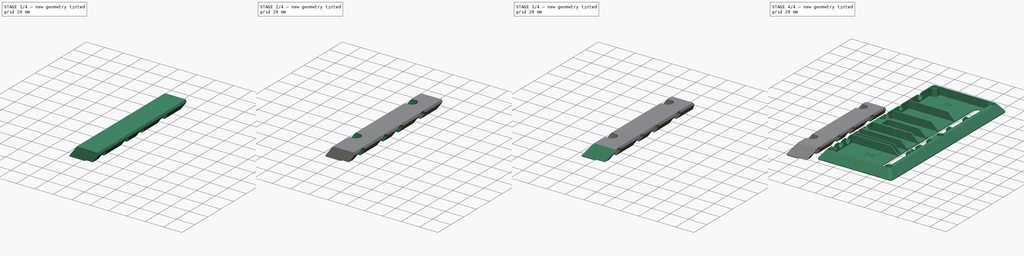
[diagram: build sequence overview — one tinted view per stage of 4, left to right]
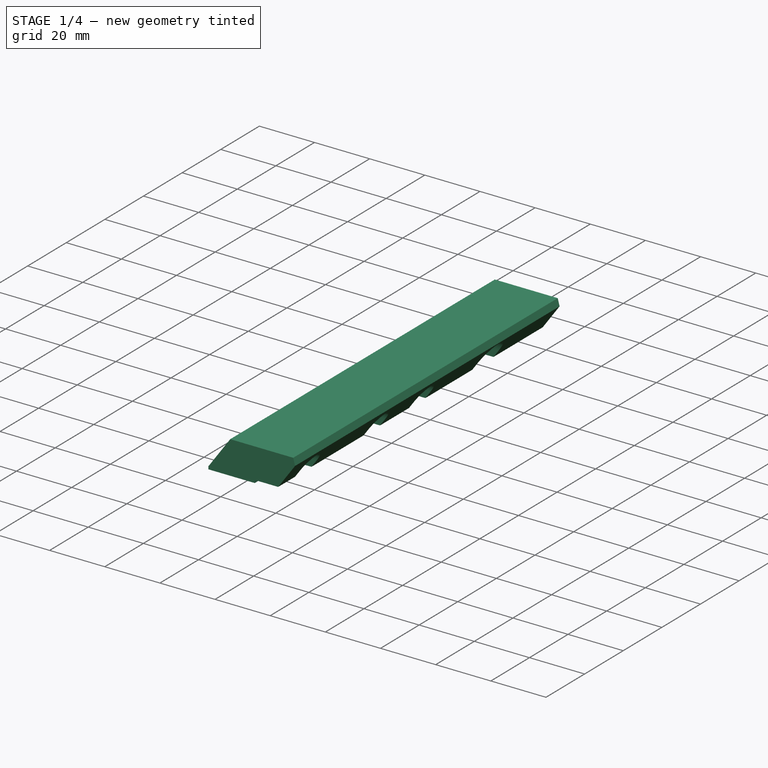
[diagram: stage 1 of 4 — iso view after this stage's code; geometry added in this stage tinted green]
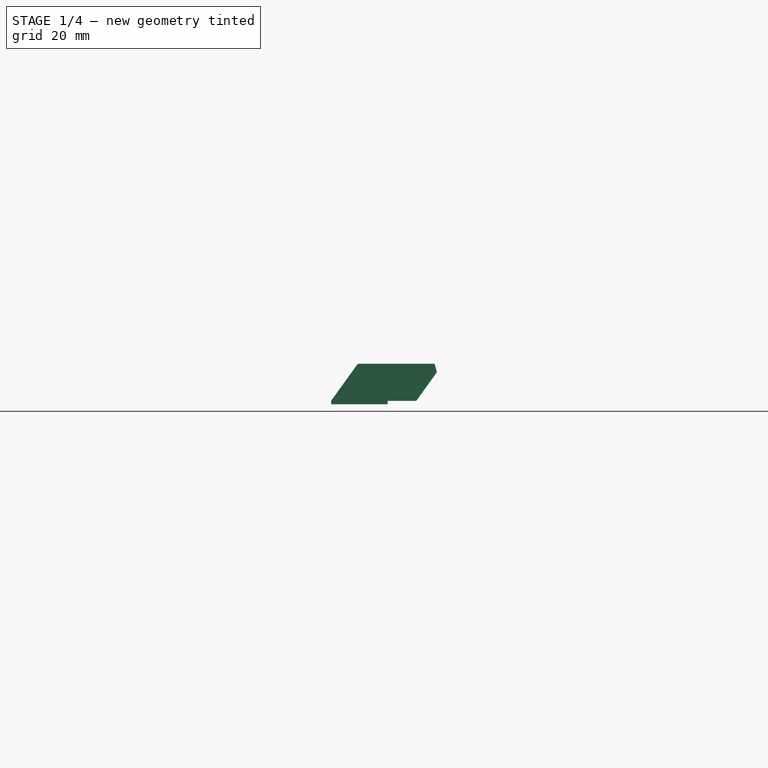
[diagram: stage 1 of 4 — front view after this stage's code; geometry added in this stage tinted green]
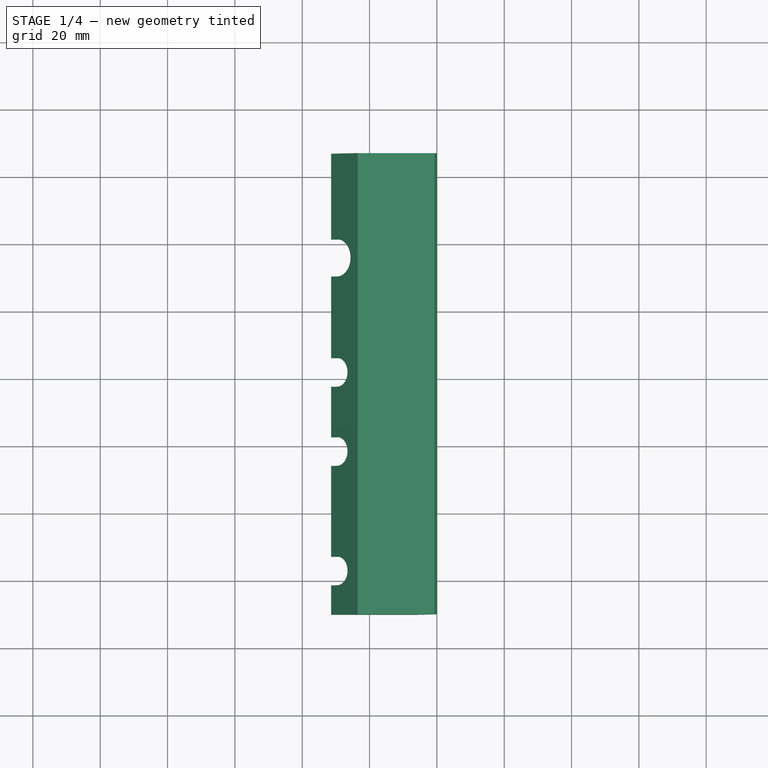
[diagram: stage 1 of 4 — top view after this stage's code; geometry added in this stage tinted green]
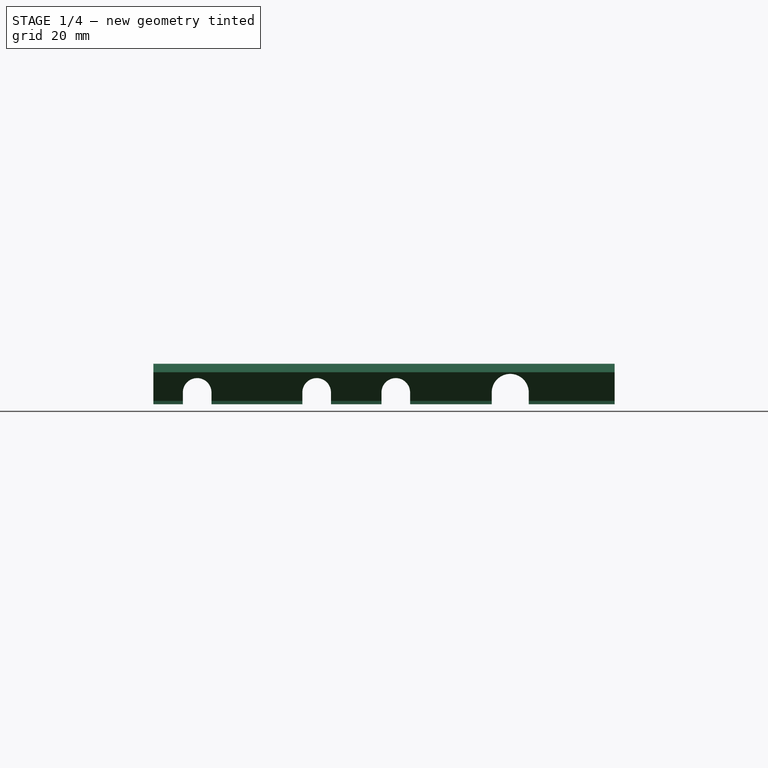
[diagram: stage 1 of 4 — right view after this stage's code; geometry added in this stage tinted green]
FCSTD DOCUMENT  (FreeCAD 0.17R13662 (Git))
Label: interconnect_strain_relief_v0.1
License: CreativeCommons Attribution-ShareAlike
LicenseURL: http://creativecommons.org/licenses/by-sa/4.0/
objects: Sketcher::SketchObject×8, PartDesign::Pocket×7, PartDesign::Fillet×2, PartDesign::Pad×1, Part::FeaturePython×1, PartDesign::Body×1
note: 28 computed .brp shape members not serialized (recipe doc carries the construction recipe); baked Part::Feature solids carry a one-line shape summary decoded from their .brp

FEATURE [Sketcher::SketchObject] Sketch
  MapMode = 5
  Placement = pos=(0,0,0) rot=(1,0,0;1.5708rad)
  Support = -> [XZ_Plane]
  sketch-geometry (8):
    g0: LineSegment StartX=-31.4191 StartY=0 StartZ=0 EndX=-31.4191 EndY=1 EndZ=0
    g1: LineSegment StartX=-31.4191 StartY=1 StartZ=0 EndX=-23.5003 EndY=12 EndZ=0
    g2: LineSegment StartX=-23.5003 StartY=12 StartZ=0 EndX=0 EndY=12 EndZ=0
    g3: LineSegment StartX=0 StartY=12 StartZ=0 EndX=0 EndY=9.5 EndZ=0
    g4: LineSegment StartX=0 StartY=9.5 StartZ=0 EndX=-6.11912 EndY=1 EndZ=0
    g5: LineSegment StartX=-14.6191 StartY=1 StartZ=0 EndX=-14.6191 EndY=0 EndZ=0
    g6: LineSegment StartX=-14.6191 StartY=0 StartZ=0 EndX=-31.4191 EndY=0 EndZ=0
    g7: LineSegment StartX=-14.6191 StartY=1 StartZ=0 EndX=-6.11912 EndY=1 EndZ=0
  constraints (24):
    c: Coincident(g0,g1)
    c: Coincident(g1,g2)
    c: Coincident(g2,g3)
    c: Coincident(g3,g4)
    c: Coincident(g5,g6)
    c: Coincident(g6,g0)
    c: Horizontal(g6)
    c: Horizontal(g2)
    c: Vertical(g3)
    c: Vertical(g0)
    c: Vertical(g5)
    c: Angle(g4) = -2.19475
    c: PointOnObject(g5,g-1)
    c: DistanceY(g5,g5) = 1
    c: PointOnObject(g3,g-2)
    c: DistanceY(g3,g3) = 2.5
    c: Parallel(g1,g4)
    c: DistanceY(g0,g0) = 1
    c: DistanceX(g6,g6) = 16.8
    c: DistanceY(g4) = 1
    c: DistanceY(g2) = 12
    c: Coincident(g4,g7)
    c: Coincident(g5,g7)
    c: DistanceX(g7,g7) = 8.5
FEATURE [PartDesign::Pad] Pad
  Length = 10
  Length2 = 127
  Placement = pos=(0,0,0) rot=(1,0,0;1.5708rad)
  Profile = -> Sketch
  Reversed = true
  Type = 4
FEATURE [Sketcher::SketchObject] Sketch001
  MapMode = 5
  Placement = pos=(-31.4191,0,0) rot=(0.707107,0,-0.707107;3.14159rad)
  Support = -> [Pad]
  sketch-geometry (24):
    g0: Circle [constr] CenterX=-3.5 CenterY=-38.5 CenterZ=0 NormalX=0 NormalY=0 NormalZ=1 AngleXU=0 Radius=4
    g1: Circle [constr] CenterX=-3.5 CenterY=-62 CenterZ=0 NormalX=0 NormalY=0 NormalZ=1 AngleXU=0 Radius=4
    g2: Circle [constr] CenterX=-3.5 CenterY=-96 CenterZ=0 NormalX=0 NormalY=0 NormalZ=1 AngleXU=0 Radius=4
    g3: Circle [constr] CenterX=-3.5 CenterY=-3 CenterZ=0 NormalX=0 NormalY=0 NormalZ=1 AngleXU=0 Radius=4
    g4: ArcOfCircle CenterX=-3.5 CenterY=-3 CenterZ=0 NormalX=0 NormalY=0 NormalZ=1 AngleXU=0 Radius=4.25 StartAngle=1.5708 EndAngle=4.71239
    g5: ArcOfCircle CenterX=-3.5 CenterY=-38.5 CenterZ=0 NormalX=0 NormalY=0 NormalZ=1 AngleXU=0 Radius=4.25 StartAngle=1.5708 EndAngle=4.71239
    g6: ArcOfCircle CenterX=-3.5 CenterY=-62 CenterZ=0 NormalX=0 NormalY=0 NormalZ=1 AngleXU=0 Radius=4.25 StartAngle=1.5708 EndAngle=4.71239
    g7: ArcOfCircle CenterX=-3.5 CenterY=-96 CenterZ=0 NormalX=0 NormalY=0 NormalZ=1 AngleXU=0 Radius=5.5 StartAngle=1.5708 EndAngle=4.71239
    g8: LineSegment StartX=-3.5 StartY=1.25 StartZ=0 EndX=4.5 EndY=1.25 EndZ=0
    g9: LineSegment StartX=4.5 StartY=1.25 StartZ=0 EndX=4.5 EndY=-7.25 EndZ=0
    g10: LineSegment StartX=4.5 StartY=-7.25 StartZ=0 EndX=-3.5 EndY=-7.25 EndZ=0
    g11: LineSegment [constr] StartX=-3.5 StartY=-7.25 StartZ=0 EndX=-3.5 EndY=1.25 EndZ=0
    g12: LineSegment StartX=-3.5 StartY=-34.25 StartZ=0 EndX=4.5 EndY=-34.25 EndZ=0
    g13: LineSegment StartX=4.5 StartY=-34.25 StartZ=0 EndX=4.5 EndY=-42.75 EndZ=0
    g14: LineSegment StartX=4.5 StartY=-42.75 StartZ=0 EndX=-3.5 EndY=-42.75 EndZ=0
    g15: LineSegment [constr] StartX=-3.5 StartY=-42.75 StartZ=0 EndX=-3.5 EndY=-34.25 EndZ=0
    g16: LineSegment StartX=-3.5 StartY=-57.75 StartZ=0 EndX=4.5 EndY=-57.75 EndZ=0
    g17: LineSegment StartX=4.5 StartY=-57.75 StartZ=0 EndX=4.5 EndY=-66.25 EndZ=0
    g18: LineSegment StartX=4.5 StartY=-66.25 StartZ=0 EndX=-3.5 EndY=-66.25 EndZ=0
    g19: LineSegment [constr] StartX=-3.5 StartY=-66.25 StartZ=0 EndX=-3.5 EndY=-57.75 EndZ=0
    g20: LineSegment StartX=-3.5 StartY=-90.5 StartZ=0 EndX=4.5 EndY=-90.5 EndZ=0
    g21: LineSegment StartX=4.5 StartY=-90.5 StartZ=0 EndX=4.5 EndY=-101.5 EndZ=0
    g22: LineSegment StartX=4.5 StartY=-101.5 StartZ=0 EndX=-3.5 EndY=-101.5 EndZ=0
    g23: LineSegment [constr] StartX=-3.5 StartY=-101.5 StartZ=0 EndX=-3.5 EndY=-90.5 EndZ=0
  constraints (68):
    c: Equal(g0,g3)
    c: Radius(g3) = 4
    c: DistanceX(g3) = -3.5
    c: DistanceY(g3) = -3
    c: DistanceX(g0,g3) = 0
    c: DistanceY(g0,g3) = 35.5
    c: DistanceX(g0,g1) = 0
    c: DistanceY(g0,g1) = -23.5
    c: DistanceX(g2,g1) = 0
    c: DistanceY(g2,g1) = 34
    c: Coincident(g2,g7)
    c: Coincident(g1,g6)
    c: Coincident(g0,g5)
    c: Coincident(g3,g4)
    c: Coincident(g8,g9)
    c: Coincident(g9,g10)
    c: Coincident(g10,g11)
    c: Coincident(g11,g8)
    c: Horizontal(g8)
    c: Horizontal(g10)
    c: Vertical(g9)
    c: Vertical(g11)
    c: Coincident(g12,g13)
    c: Coincident(g13,g14)
    c: Coincident(g14,g15)
    c: Coincident(g15,g12)
    c: Horizontal(g12)
    c: Horizontal(g14)
    c: Vertical(g13)
    c: Vertical(g15)
    c: Coincident(g16,g17)
    c: Coincident(g17,g18)
    c: Coincident(g18,g19)
    c: Coincident(g19,g16)
    c: Horizontal(g16)
    c: Horizontal(g18)
    c: Vertical(g17)
    c: Vertical(g19)
    c: Coincident(g20,g21)
    c: Coincident(g21,g22)
    c: Coincident(g22,g23)
    c: Coincident(g23,g20)
    c: Horizontal(g20)
    c: Horizontal(g22)
    c: Vertical(g21)
    c: Vertical(g23)
    c: Coincident(g7,g22)
    c: Coincident(g7,g20)
    c: PointOnObject(g2,g23)
    c: DistanceX(g20,g20) = 8
    c: Equal(g20,g18)
    c: Coincident(g6,g18)
    c: Coincident(g6,g16)
    c: PointOnObject(g1,g19)
    c: Equal(g16,g14)
    c: Coincident(g5,g14)
    c: Coincident(g5,g12)
    c: PointOnObject(g0,g15)
    c: Coincident(g4,g10)
    c: Coincident(g4,g8)
    c: PointOnObject(g3,g11)
    c: Equal(g8,g12)
    c: Equal(g13,g9)
    c: DistanceY(g21,g21) = 11
    c: DistanceY(g17,g17) = 8.5
    c: Equal(g13,g17)
    c: Equal(g1,g0)
    c: Equal(g0,g2)
FEATURE [Sketcher::SketchObject] Sketch003
  MapMode = 5
  Placement = pos=(2.37704,0,0.636926) rot=(0.608761,0,0.793353;3.14159rad)
  sketch-geometry (21):
    g0: ArcOfCircle CenterX=6 CenterY=-38.5 CenterZ=0 NormalX=0 NormalY=0 NormalZ=1 AngleXU=0 Radius=5 StartAngle=4.71239 EndAngle=7.85398
    g1: ArcOfCircle CenterX=6 CenterY=-62 CenterZ=0 NormalX=0 NormalY=0 NormalZ=1 AngleXU=0 Radius=5 StartAngle=4.71239 EndAngle=7.85398
    g2: ArcOfCircle CenterX=6 CenterY=-96 CenterZ=0 NormalX=0 NormalY=0 NormalZ=1 AngleXU=0 Radius=5.5 StartAngle=4.71239 EndAngle=7.85398
    g3: ArcOfCircle CenterX=6 CenterY=-3 CenterZ=0 NormalX=0 NormalY=0 NormalZ=1 AngleXU=0 Radius=5 StartAngle=4.71239 EndAngle=7.85398
    g4: LineSegment StartX=6 StartY=2 StartZ=0 EndX=0 EndY=2 EndZ=0
    g5: LineSegment StartX=0 StartY=2 StartZ=0 EndX=0 EndY=-8 EndZ=0
    g6: LineSegment StartX=0 StartY=-8 StartZ=0 EndX=6 EndY=-8 EndZ=0
    g7: LineSegment [constr] StartX=6 StartY=-8 StartZ=0 EndX=6 EndY=2 EndZ=0
    g8: LineSegment StartX=6 StartY=-33.5 StartZ=0 EndX=0 EndY=-33.5 EndZ=0
    g9: LineSegment StartX=0 StartY=-33.5 StartZ=0 EndX=0 EndY=-43.5 EndZ=0
    g10: LineSegment StartX=0 StartY=-43.5 StartZ=0 EndX=6 EndY=-43.5 EndZ=0
    g11: LineSegment [constr] StartX=6 StartY=-43.5 StartZ=0 EndX=6 EndY=-33.5 EndZ=0
    g12: LineSegment StartX=6 StartY=-57 StartZ=0 EndX=0 EndY=-57 EndZ=0
    g13: LineSegment StartX=0 StartY=-57 StartZ=0 EndX=0 EndY=-67 EndZ=0
    g14: LineSegment StartX=0 StartY=-67 StartZ=0 EndX=6 EndY=-67 EndZ=0
    g15: LineSegment [constr] StartX=6 StartY=-67 StartZ=0 EndX=6 EndY=-57 EndZ=0
    g16: LineSegment StartX=6 StartY=-90.5 StartZ=0 EndX=0 EndY=-90.5 EndZ=0
    g17: LineSegment StartX=0 StartY=-90.5 StartZ=0 EndX=0 EndY=-101.5 EndZ=0
    g18: LineSegment StartX=0 StartY=-101.5 StartZ=0 EndX=6 EndY=-101.5 EndZ=0
    g19: LineSegment [constr] StartX=6 StartY=-101.5 StartZ=0 EndX=6 EndY=-90.5 EndZ=0
    g20: LineSegment [constr] StartX=6 StartY=-3 StartZ=0 EndX=6 EndY=-96 EndZ=0
  constraints (61):
    c: Equal(g1,g0)
    c: Equal(g0,g3)
    c: Radius(g3) = 5
    c: Coincident(g5,g6)
    c: Coincident(g6,g7)
    c: Coincident(g7,g4)
    c: Horizontal(g4)
    c: Horizontal(g6)
    c: Vertical(g5)
    c: Vertical(g7)
    c: Coincident(g8,g9)
    c: Coincident(g9,g10)
    c: Coincident(g10,g11)
    c: Coincident(g11,g8)
    c: Horizontal(g8)
    c: Horizontal(g10)
    c: Vertical(g9)
    c: Vertical(g11)
    c: Coincident(g12,g13)
    c: Coincident(g13,g14)
    c: Coincident(g14,g15)
    c: Coincident(g15,g12)
    c: Horizontal(g12)
    c: Horizontal(g14)
    c: Vertical(g13)
    c: Vertical(g15)
    c: Coincident(g16,g17)
    c: Coincident(g17,g18)
    c: Coincident(g18,g19)
    c: Coincident(g19,g16)
    c: Horizontal(g16)
    c: Horizontal(g18)
    c: Vertical(g17)
    c: Vertical(g19)
    c: Coincident(g2,g18)
    c: Coincident(g2,g16)
    c: DistanceX(g-1,g3) = 6
    c: Coincident(g3,g4)
    c: Tangent(g3,g6) = -1.5708
    c: Coincident(g4,g5)
    c: PointOnObject(g5,g-2)
    c: DistanceY(g3,g-1) = 3
    c: Coincident(g2,g20)
    c: Coincident(g1,g12)
    c: Coincident(g1,g14)
    c: Coincident(g0,g10)
    c: Coincident(g0,g8)
    c: PointOnObject(g0,g20)
    c: PointOnObject(g8,g-2)
    c: PointOnObject(g12,g-2)
    c: PointOnObject(g1,g15)
    c: PointOnObject(g1,g20)
    c: PointOnObject(g0,g11)
    c: PointOnObject(g2,g19)
    c: PointOnObject(g16,g-2)
    c: Vertical(g20)
    c: Coincident(g3,g20)
    c: DistanceY(g0,g3) = 35.5
    c: DistanceY(g1,g0) = 23.5
    c: DistanceY(g2,g1) = 34
    c: Radius(g2) = 5.5
FEATURE [Sketcher::SketchObject] Sketch004
  MapMode = 5
  Placement = pos=(0,0,12.0082) rot=(0,0,1;3.14159rad)
  sketch-geometry (10):
    g0: Circle [constr] CenterX=19.62 CenterY=-107 CenterZ=0 NormalX=0 NormalY=0 NormalZ=1 AngleXU=0 Radius=3
    g1: Circle [constr] CenterX=19.62 CenterY=-20 CenterZ=0 NormalX=0 NormalY=0 NormalZ=1 AngleXU=0 Radius=3
    g2: ArcOfCircle CenterX=19.62 CenterY=-20 CenterZ=0 NormalX=0 NormalY=0 NormalZ=1 AngleXU=0 Radius=3 StartAngle=1.5708 EndAngle=4.71239
    g3: ArcOfCircle CenterX=23.62 CenterY=-20 CenterZ=0 NormalX=0 NormalY=0 NormalZ=1 AngleXU=0 Radius=3 StartAngle=4.71239 EndAngle=7.85398
    g4: LineSegment StartX=19.62 StartY=-23 StartZ=0 EndX=23.62 EndY=-23 EndZ=0
    g5: LineSegment StartX=19.62 StartY=-17 StartZ=0 EndX=23.62 EndY=-17 EndZ=0
    g6: ArcOfCircle CenterX=19.62 CenterY=-107 CenterZ=0 NormalX=0 NormalY=0 NormalZ=1 AngleXU=0 Radius=3 StartAngle=1.5708 EndAngle=4.71239
    g7: ArcOfCircle CenterX=23.62 CenterY=-107 CenterZ=0 NormalX=0 NormalY=0 NormalZ=1 AngleXU=0 Radius=3 StartAngle=4.71239 EndAngle=7.85398
    g8: LineSegment StartX=19.62 StartY=-110 StartZ=0 EndX=23.62 EndY=-110 EndZ=0
    g9: LineSegment StartX=19.62 StartY=-104 StartZ=0 EndX=23.62 EndY=-104 EndZ=0
  constraints (24):
    c: DistanceY(g0) = -107
    c: Radius(g0) = 3
    c: DistanceX(g1,g0) = 0
    c: DistanceY(g1,g0) = -87
    c: Equal(g1,g0)
    c: DistanceX(g0) = 19.62
    c: Tangent(g2,g5) = 1.5708
    c: Tangent(g2,g4) = -1.5708
    c: Tangent(g4,g3) = -1.5708
    c: Tangent(g5,g3) = 1.5708
    c: Horizontal(g4)
    c: Equal(g2,g3)
    c: Tangent(g6,g9) = 1.5708
    c: Tangent(g6,g8) = -1.5708
    c: Tangent(g8,g7) = -1.5708
    c: Tangent(g9,g7) = 1.5708
    c: Horizontal(g8)
    c: Equal(g6,g7)
    c: Coincident(g0,g6)
    c: Equal(g6,g0)
    c: DistanceX(g9,g9) = 4
    c: Coincident(g1,g2)
    c: Equal(g2,g1)
    c: DistanceX(g5,g5) = 4
FEATURE [Sketcher::SketchObject] Sketch005
  MapMode = 5
  Placement = pos=(0,0,12.0082) rot=(0,0,1;3.14159rad)
  sketch-geometry (10):
    g0: Circle [constr] CenterX=19.5 CenterY=-20 CenterZ=0 NormalX=0 NormalY=0 NormalZ=1 AngleXU=0 Radius=5.5
    g1: Circle [constr] CenterX=19.5 CenterY=-107 CenterZ=0 NormalX=0 NormalY=0 NormalZ=1 AngleXU=0 Radius=5.5
    g2: ArcOfCircle CenterX=19.5 CenterY=-107 CenterZ=0 NormalX=0 NormalY=0 NormalZ=1 AngleXU=0 Radius=5.5 StartAngle=1.5708 EndAngle=4.71239
    g3: ArcOfCircle CenterX=23.5 CenterY=-107 CenterZ=0 NormalX=0 NormalY=0 NormalZ=1 AngleXU=0 Radius=5.5 StartAngle=4.71239 EndAngle=7.85398
    g4: LineSegment StartX=19.5 StartY=-112.5 StartZ=0 EndX=23.5 EndY=-112.5 EndZ=0
    g5: LineSegment StartX=19.5 StartY=-101.5 StartZ=0 EndX=23.5 EndY=-101.5 EndZ=0
    g6: ArcOfCircle CenterX=19.5 CenterY=-20 CenterZ=0 NormalX=0 NormalY=0 NormalZ=1 AngleXU=0 Radius=5.5 StartAngle=1.5708 EndAngle=4.71239
    g7: ArcOfCircle CenterX=23.5 CenterY=-20 CenterZ=0 NormalX=0 NormalY=0 NormalZ=1 AngleXU=0 Radius=5.5 StartAngle=4.71239 EndAngle=7.85398
    g8: LineSegment StartX=19.5 StartY=-25.5 StartZ=0 EndX=23.5 EndY=-25.5 EndZ=0
    g9: LineSegment StartX=19.5 StartY=-14.5 StartZ=0 EndX=23.5 EndY=-14.5 EndZ=0
  constraints (24):
    c: DistanceY(g0) = -20
    c: Radius(g0) = 5.5
    c: DistanceX(g0,g1) = 0
    c: DistanceY(g0,g1) = -87
    c: Equal(g1,g0)
    c: DistanceX(g0) = 19.5
    c: Tangent(g2,g5) = 1.5708
    c: Tangent(g2,g4) = -1.5708
    c: Tangent(g4,g3) = -1.5708
    c: Tangent(g5,g3) = 1.5708
    c: Horizontal(g4)
    c: Equal(g2,g3)
    c: Equal(g2,g1)
    c: Coincident(g1,g2)
    c: DistanceX(g5,g5) = 4
    c: Tangent(g6,g9) = 1.5708
    c: Tangent(g6,g8) = -1.5708
    c: Tangent(g8,g7) = -1.5708
    c: Tangent(g9,g7) = 1.5708
    c: Horizontal(g8)
    c: Equal(g6,g7)
    c: Coincident(g0,g6)
    c: Equal(g7,g0)
    c: DistanceX(g9,g9) = 4
FEATURE [PartDesign::Pocket] Pocket
  BaseFeature = -> Pad
  Length = 5
  Length2 = 100
  Placement = pos=(0,0,0) rot=(1,0,0;1.5708rad)
  Profile = -> Sketch001
  Type = 1
FEATURE [Sketcher::SketchObject] Sketch002
  MapMode = 5
  Placement = pos=(0,-10,-1e-12) rot=(1,0,0;1.5708rad)
  Support = -> [Pocket]
  sketch-geometry (3):
    g0: LineSegment StartX=0 StartY=9.50816 StartZ=0 EndX=-0.669873 EndY=12.0082 EndZ=0
    g1: LineSegment StartX=-0.669873 StartY=12.0082 StartZ=0 EndX=0 EndY=12.0082 EndZ=0
    g2: LineSegment StartX=0 StartY=12.0082 StartZ=0 EndX=0 EndY=9.50816 EndZ=0
  constraints (9):
    c: Coincident(g0,g1)
    c: Coincident(g1,g2)
    c: Coincident(g0,g2)
    c: Horizontal(g1)
    c: Vertical(g2)
    c: PointOnObject(g0,g-2)
    c: DistanceY(g2,g2) = 2.5
    c: Angle(g0,g1) = 1.309
    c: DistanceY(g1) = 12.0082
FEATURE [PartDesign::Pocket] Pocket001
  BaseFeature = -> Pocket
  Length = 5
  Length2 = 100
  Placement = pos=(0,0,0) rot=(1,0,0;1.5708rad)
  Profile = -> Sketch002
  Type = 1
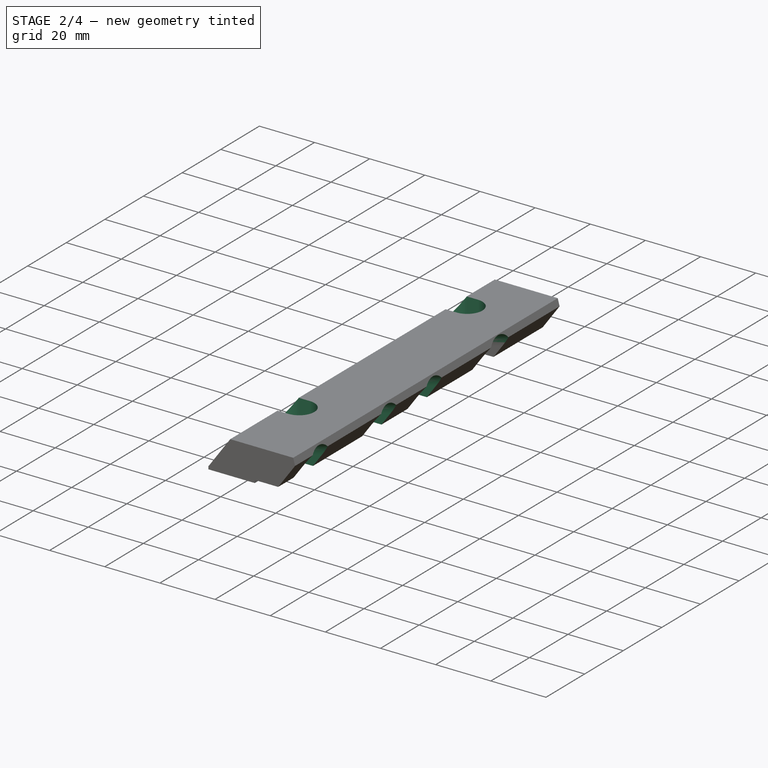
[diagram: stage 2 of 4 — iso view after this stage's code; geometry added in this stage tinted green]
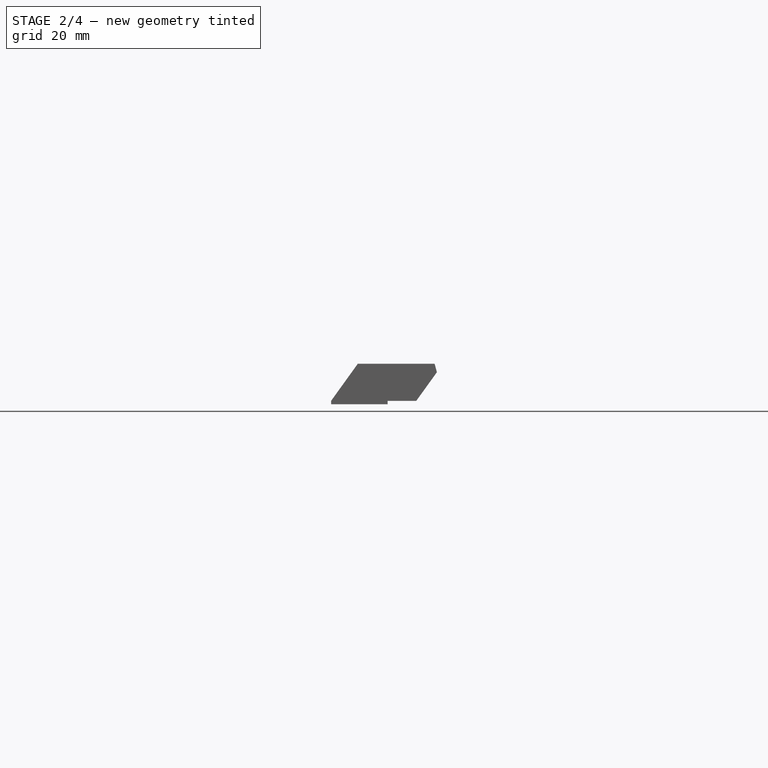
[diagram: stage 2 of 4 — front view after this stage's code; geometry added in this stage tinted green]
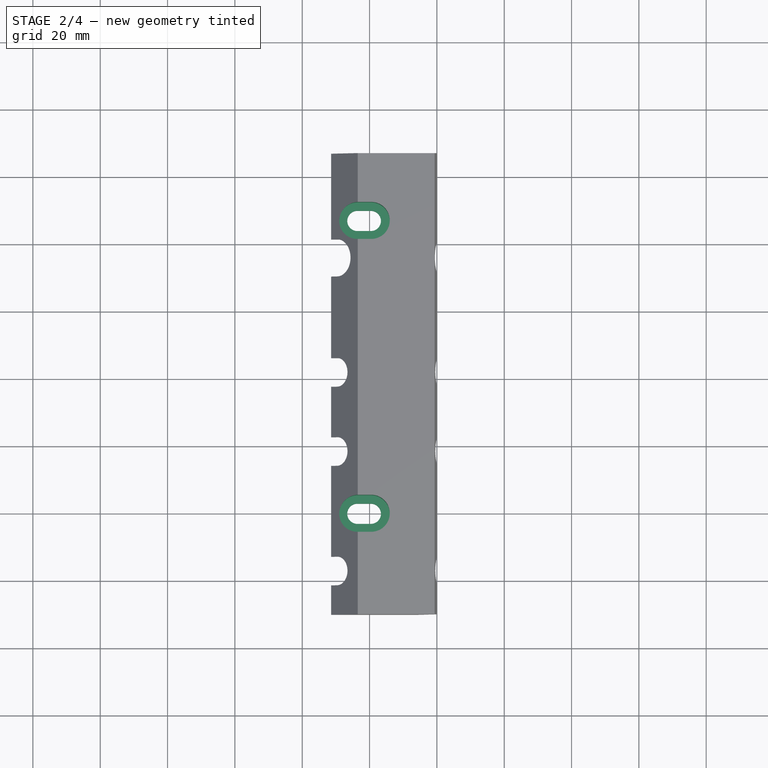
[diagram: stage 2 of 4 — top view after this stage's code; geometry added in this stage tinted green]
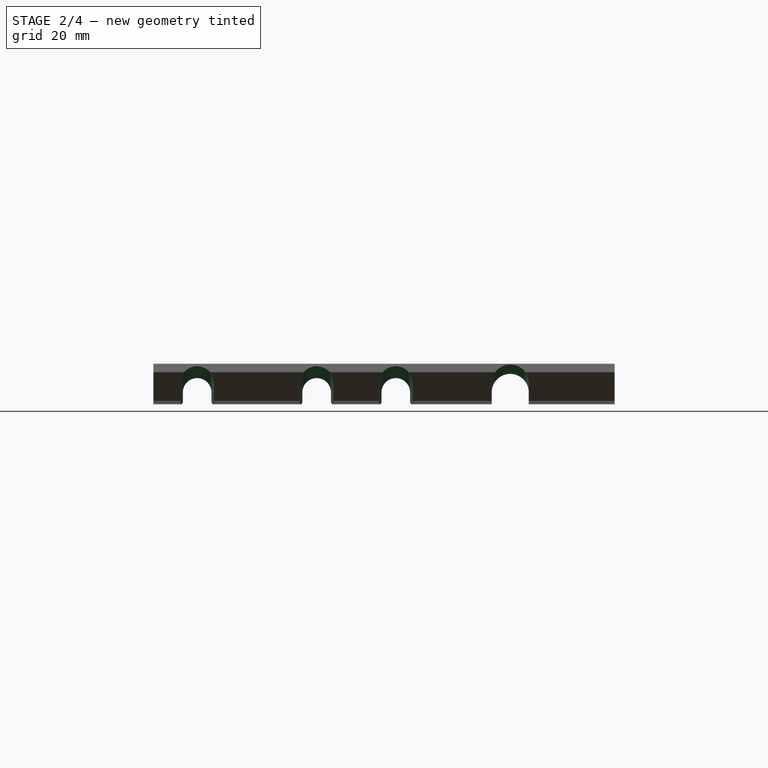
[diagram: stage 2 of 4 — right view after this stage's code; geometry added in this stage tinted green]
FEATURE [PartDesign::Pocket] Pocket002
  BaseFeature = -> Pocket001
  Length = 5
  Length2 = 100
  Placement = pos=(0,0,0) rot=(1,0,0;1.5708rad)
  Profile = -> Sketch003
  Type = 1
FEATURE [PartDesign::Pocket] Pocket003
  BaseFeature = -> Pocket002
  Length = 5
  Length2 = 100
  Placement = pos=(0,0,0) rot=(1,0,0;1.5708rad)
  Profile = -> Sketch004
  Type = 1
FEATURE [PartDesign::Pocket] Pocket004
  BaseFeature = -> Pocket003
  Length = 9
  Length2 = 100
  Placement = pos=(0,0,0) rot=(1,0,0;1.5708rad)
  Profile = -> Sketch005
  Type = 0
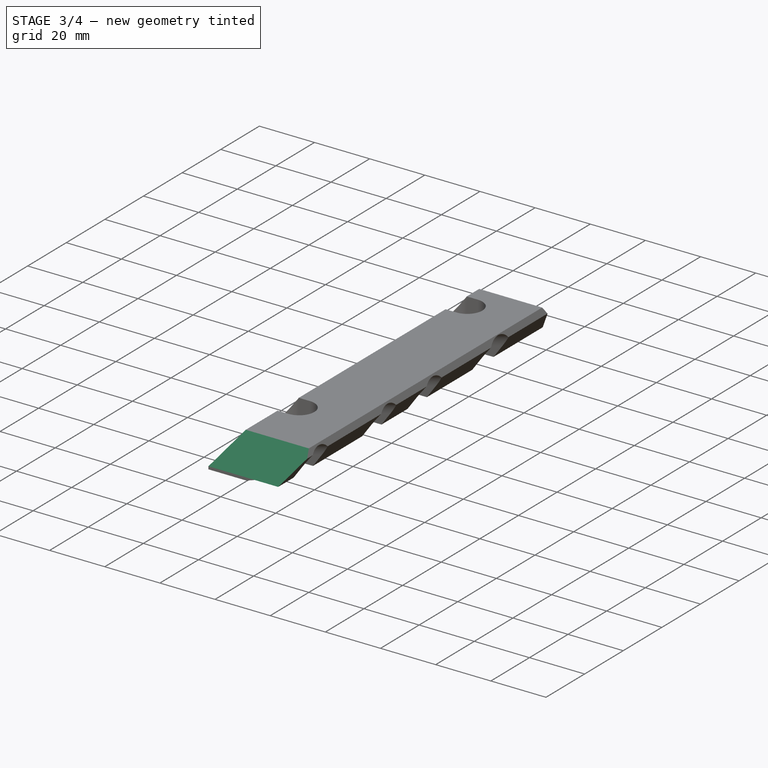
[diagram: stage 3 of 4 — iso view after this stage's code; geometry added in this stage tinted green]
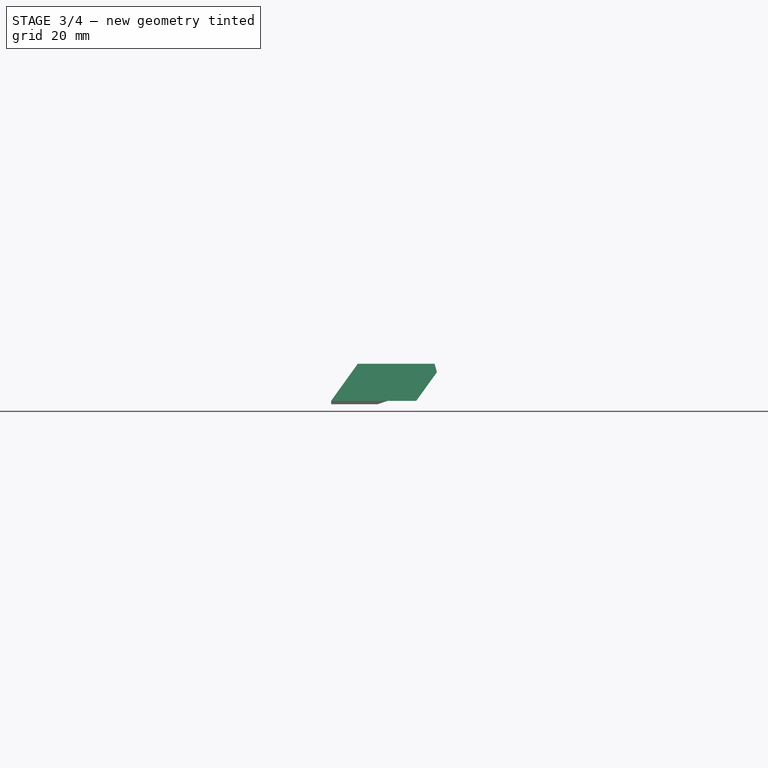
[diagram: stage 3 of 4 — front view after this stage's code; geometry added in this stage tinted green]
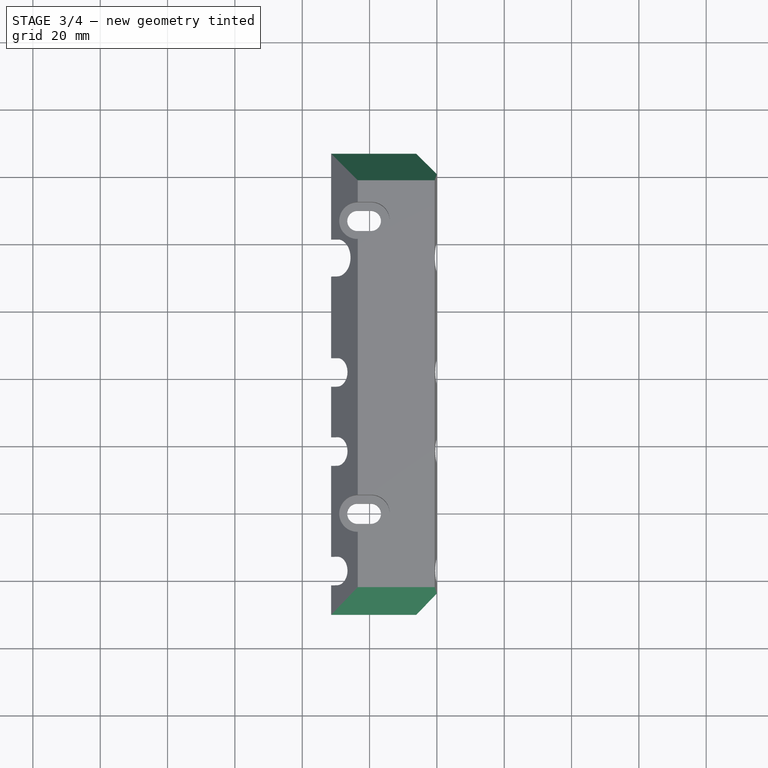
[diagram: stage 3 of 4 — top view after this stage's code; geometry added in this stage tinted green]
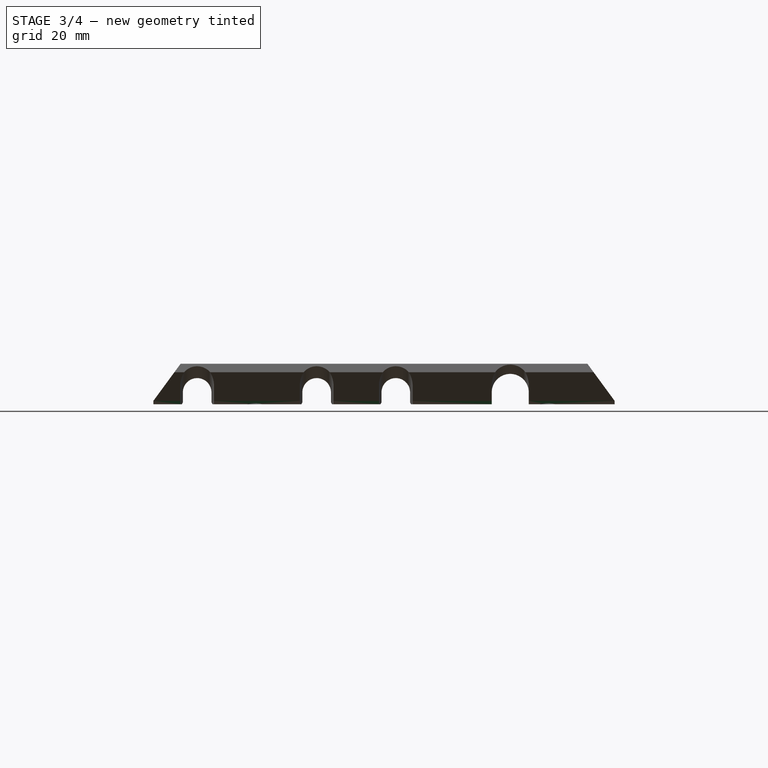
[diagram: stage 3 of 4 — right view after this stage's code; geometry added in this stage tinted green]
FEATURE [Sketcher::SketchObject] Sketch006
  MapMode = 5
  Placement = pos=(-31.4191,0,0) rot=(0.707107,0,-0.707107;3.14159rad)
  Support = -> [Pocket004]
  sketch-geometry (6):
    g0: LineSegment StartX=-1 StartY=-127 StartZ=0 EndX=-12.25 EndY=-118.75 EndZ=0
    g1: LineSegment StartX=-12.25 StartY=-118.75 StartZ=0 EndX=-12.25 EndY=-127 EndZ=0
    g2: LineSegment StartX=-12.25 StartY=-127 StartZ=0 EndX=-1 EndY=-127 EndZ=0
    g3: LineSegment StartX=-1 StartY=10 StartZ=0 EndX=-12.25 EndY=1.75 EndZ=0
    g4: LineSegment StartX=-12.25 StartY=1.75 StartZ=0 EndX=-12.25 EndY=10 EndZ=0
    g5: LineSegment StartX=-12.25 StartY=10 StartZ=0 EndX=-1 EndY=10 EndZ=0
  constraints (18):
    c: Coincident(g0,g1)
    c: Coincident(g1,g2)
    c: Coincident(g0,g2)
    c: Vertical(g1)
    c: Horizontal(g2)
    c: DistanceX(g0) = -1
    c: DistanceY(g0) = -127
    c: DistanceX(g2,g2) = 11.25
    c: DistanceY(g0,g0) = 8.25
    c: Coincident(g3,g4)
    c: Coincident(g4,g5)
    c: Coincident(g5,g3)
    c: Horizontal(g5)
    c: Vertical(g4)
    c: DistanceX(g3) = -1
    c: DistanceY(g3) = 10
    c: PointOnObject(g4,g1)
    c: Equal(g4,g1)
FEATURE [PartDesign::Pocket] Pocket005
  BaseFeature = -> Pocket004
  Length = 5
  Length2 = 100
  Placement = pos=(0,0,0) rot=(1,0,0;1.5708rad)
  Profile = -> Sketch006
  Type = 1
FEATURE [Sketcher::SketchObject] Sketch007
  MapMode = 5
  Placement = pos=(0,127,1.3e-11) rot=(-1,0,0;1.5708rad)
  Support = -> [Pocket005]
  sketch-geometry (3):
    g0: LineSegment StartX=-14.6 StartY=-1 StartZ=0 EndX=-17.6 EndY=0 EndZ=0
    g1: LineSegment StartX=-17.6 StartY=0 StartZ=0 EndX=-14.6 EndY=0 EndZ=0
    g2: LineSegment StartX=-14.6 StartY=0 StartZ=0 EndX=-14.6 EndY=-1 EndZ=0
  constraints (9):
    c: PointOnObject(g0,g-1)
    c: Coincident(g0,g1)
    c: Horizontal(g1)
    c: Coincident(g1,g2)
    c: Coincident(g2,g0)
    c: DistanceX(g0) = -14.6
    c: DistanceY(g0) = -1
    c: Vertical(g2)
    c: DistanceX(g1,g1) = 3
FEATURE [PartDesign::Pocket] Pocket006
  BaseFeature = -> Pocket005
  Length = 5
  Length2 = 100
  Placement = pos=(0,0,0) rot=(1,0,0;1.5708rad)
  Profile = -> Sketch007
  Type = 1
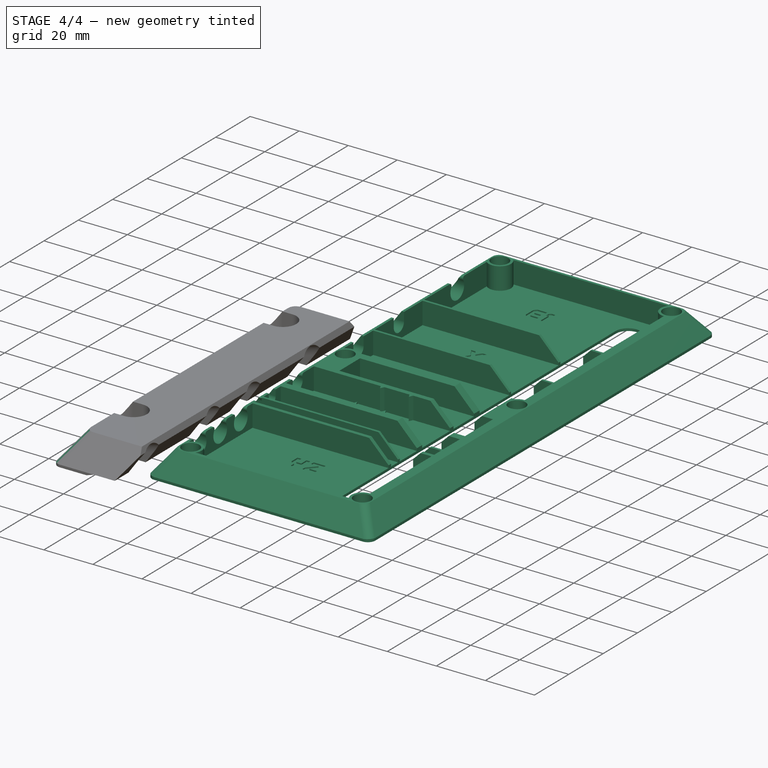
[diagram: stage 4 of 4 — iso view after this stage's code; geometry added in this stage tinted green]
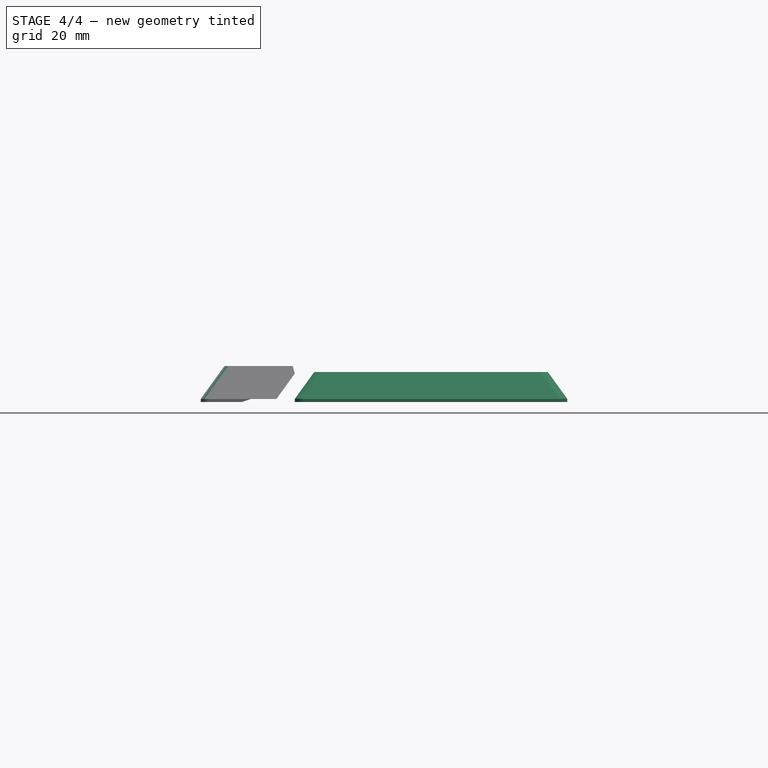
[diagram: stage 4 of 4 — front view after this stage's code; geometry added in this stage tinted green]
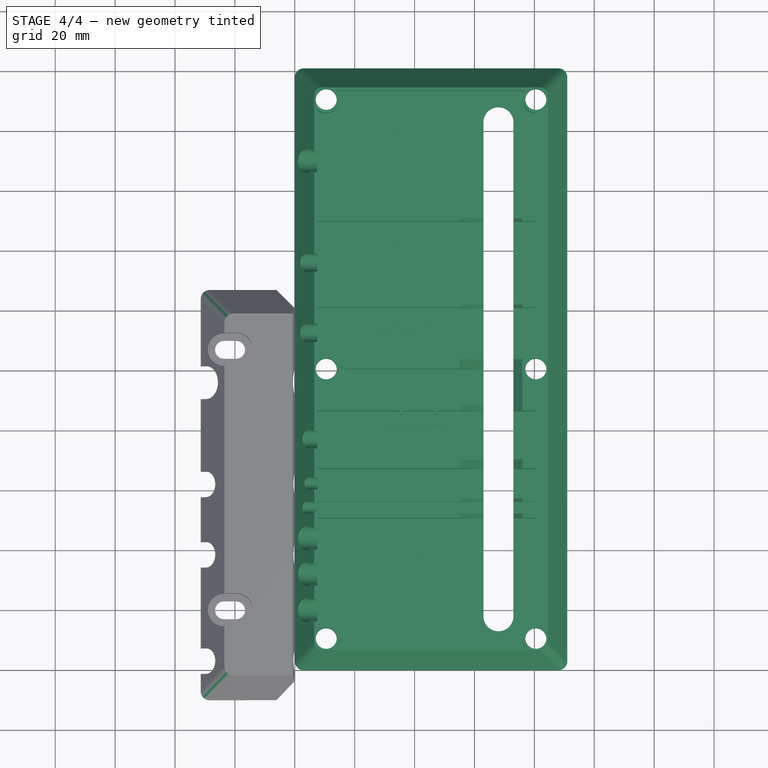
[diagram: stage 4 of 4 — top view after this stage's code; geometry added in this stage tinted green]
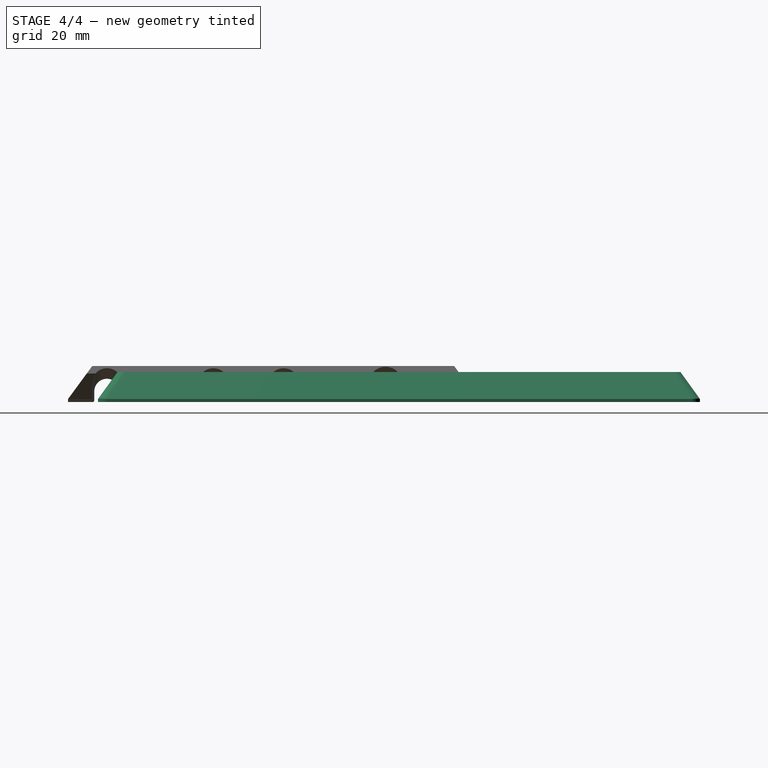
[diagram: stage 4 of 4 — right view after this stage's code; geometry added in this stage tinted green]
FEATURE [Part::FeaturePython] interconnect_housing_01  # a2plus imported part (geometry in sourceFile) (typed FeaturePython)
  fixedPosition = true
  sourceFile = <userpath>/Projects/taz-redgum/production_parts/printed_parts/interconnect_housing/interconnect_housing.fcstd
  timeLastImport = 1.55905e+09
  updateColors = true
FEATURE [PartDesign::Fillet] Fillet
  Base = -> Pocket006 [Edge122,Edge5]
  BaseFeature = -> Pocket006
  Placement = pos=(0,0,0) rot=(1,0,0;1.5708rad)
  Radius = 3
FEATURE [PartDesign::Fillet] Fillet001
  Base = -> Fillet [Edge23,Edge61]
  BaseFeature = -> Fillet
  Placement = pos=(0,0,0) rot=(1,0,0;1.5708rad)
  Radius = 4
FEATURE [PartDesign::Body] Body
  Group = -> [Sketch,Pad,Sketch001,Sketch002,Sketch003,Sketch004,Sketch005,Sketch006,Pocket,Pocket001,Pocket002,Pocket003,Pocket004,Pocket005,Sketch007,Pocket006,Fillet,Fillet001]
  Origin = -> Origin
  Tip = -> Fillet001
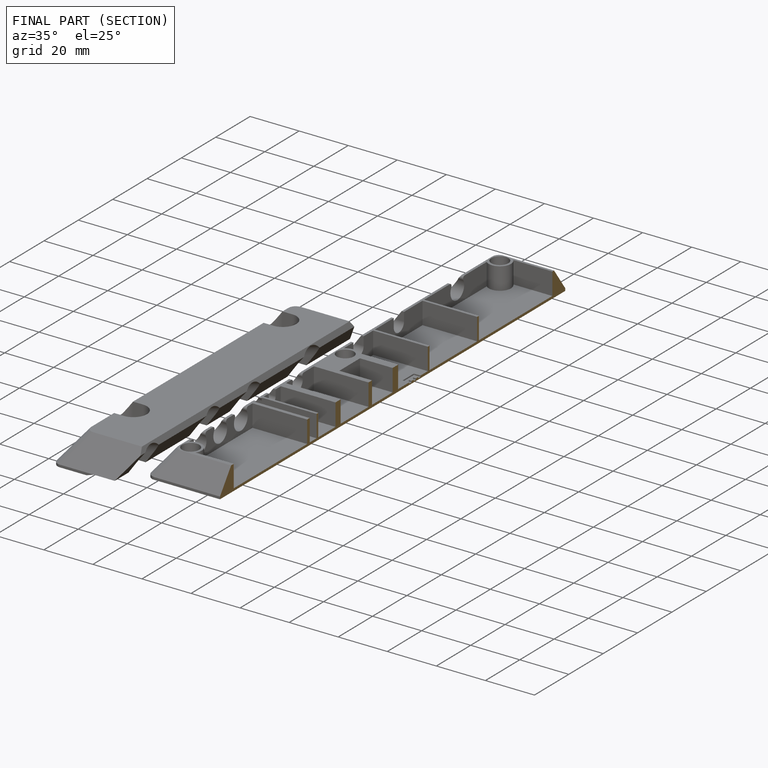
[diagram: finished part — half-section view (interior)]
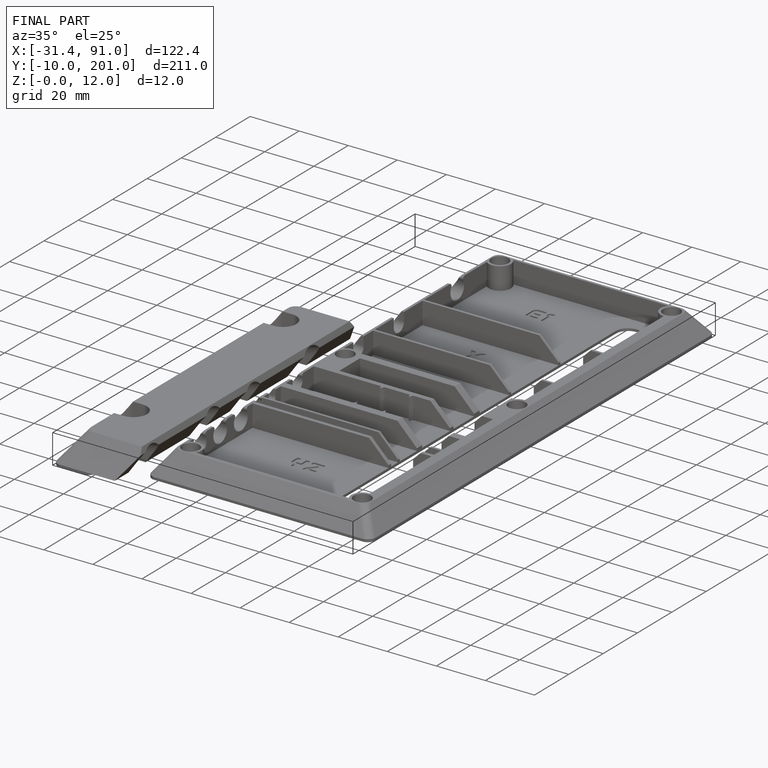
[diagram: finished part — iso view with bounding-box wireframe]
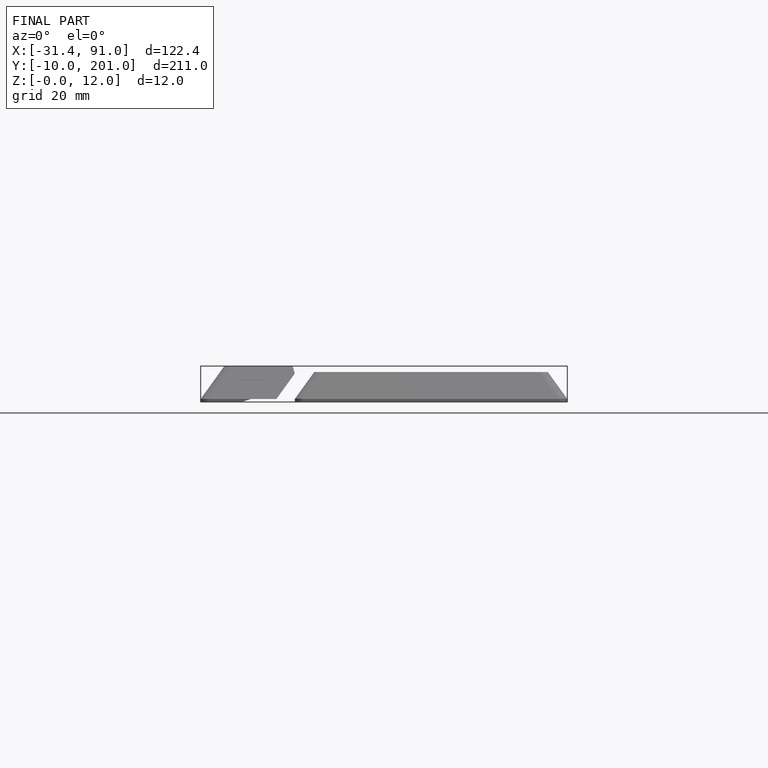
[diagram: finished part — front view with bounding-box wireframe]
